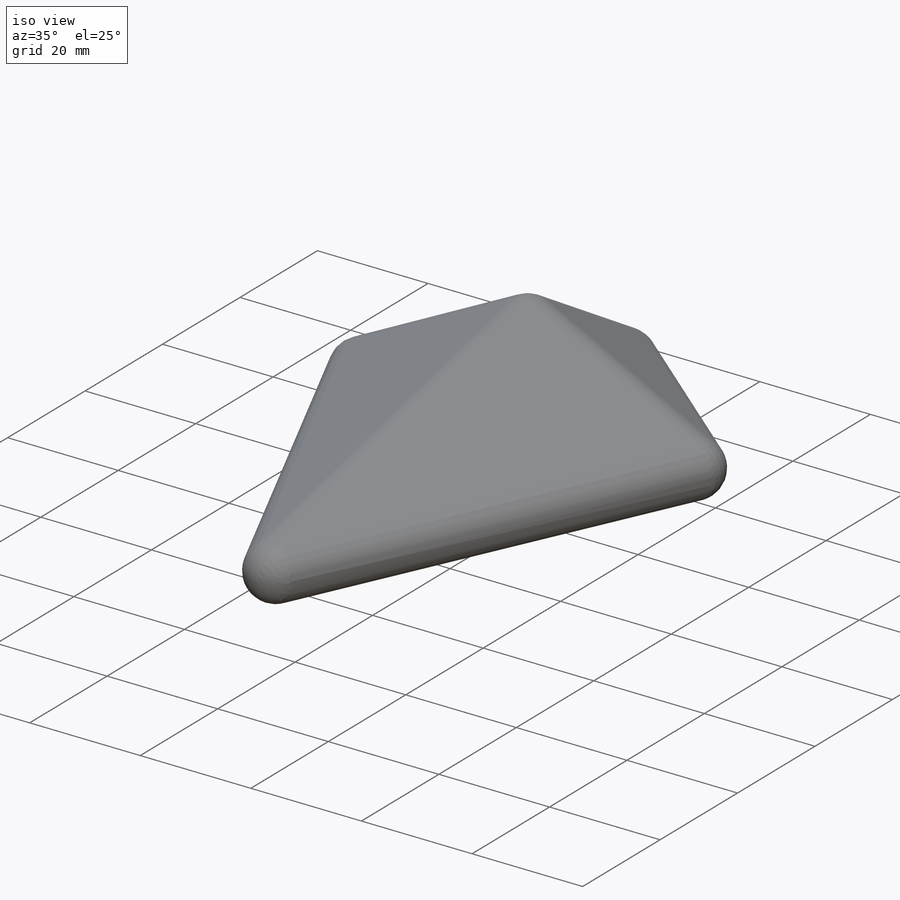
[diagram: iso view]
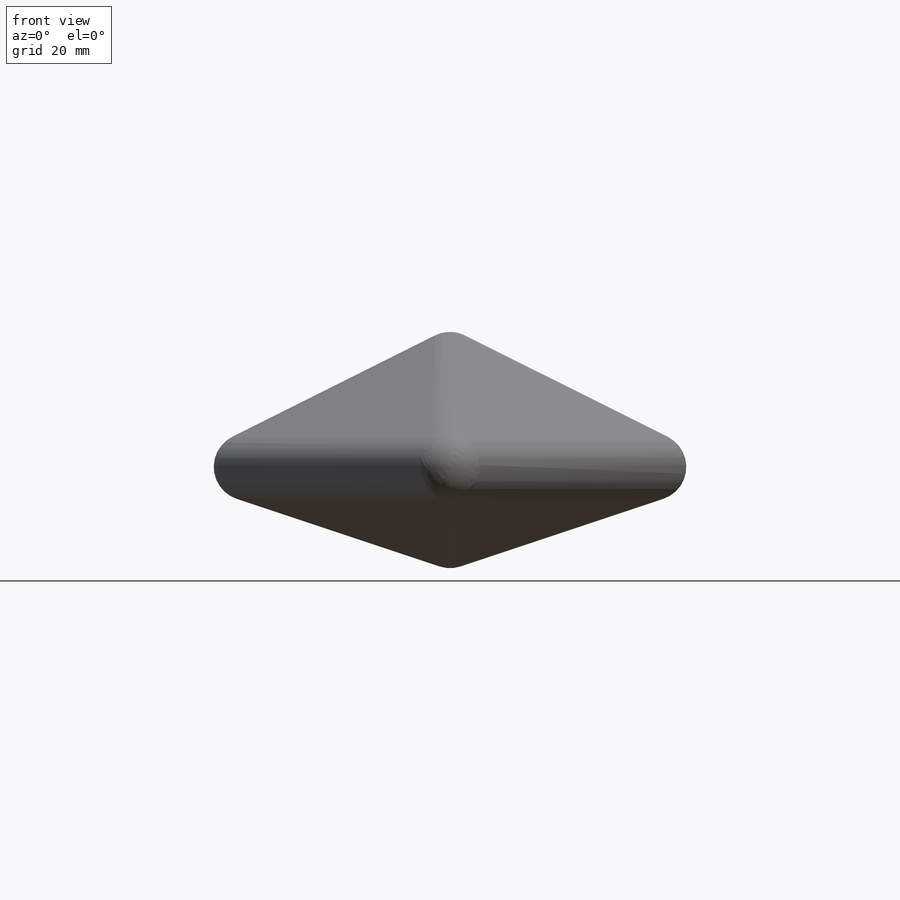
[diagram: front view]
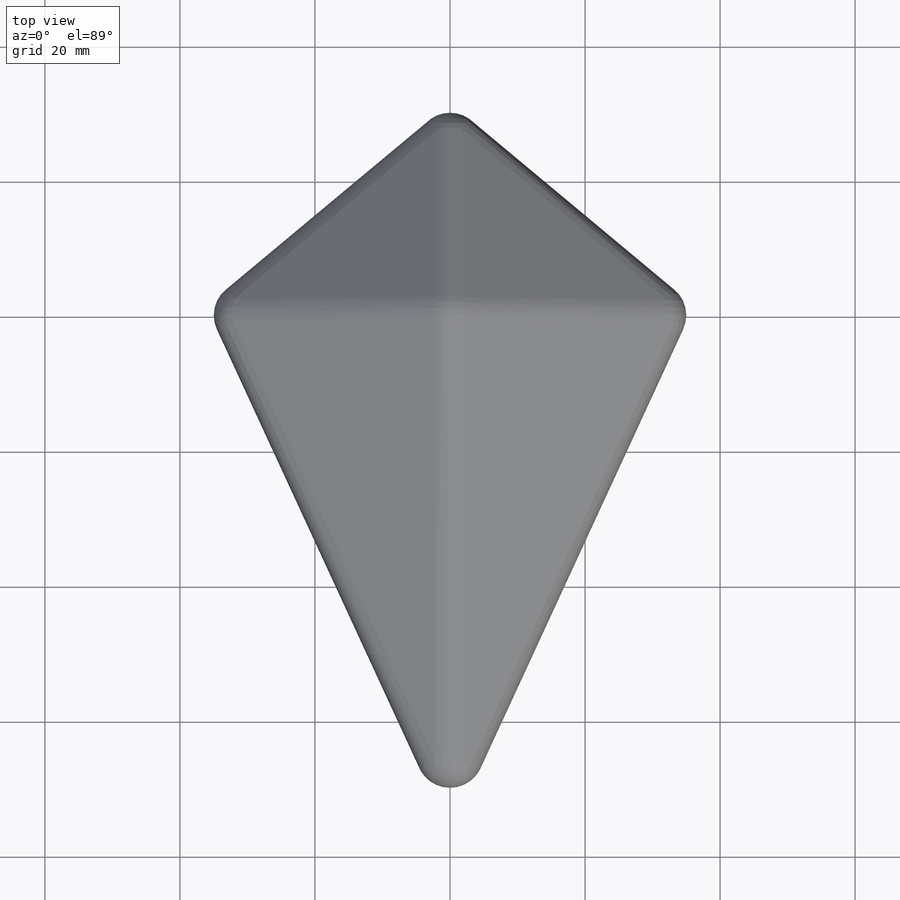
[diagram: top view]
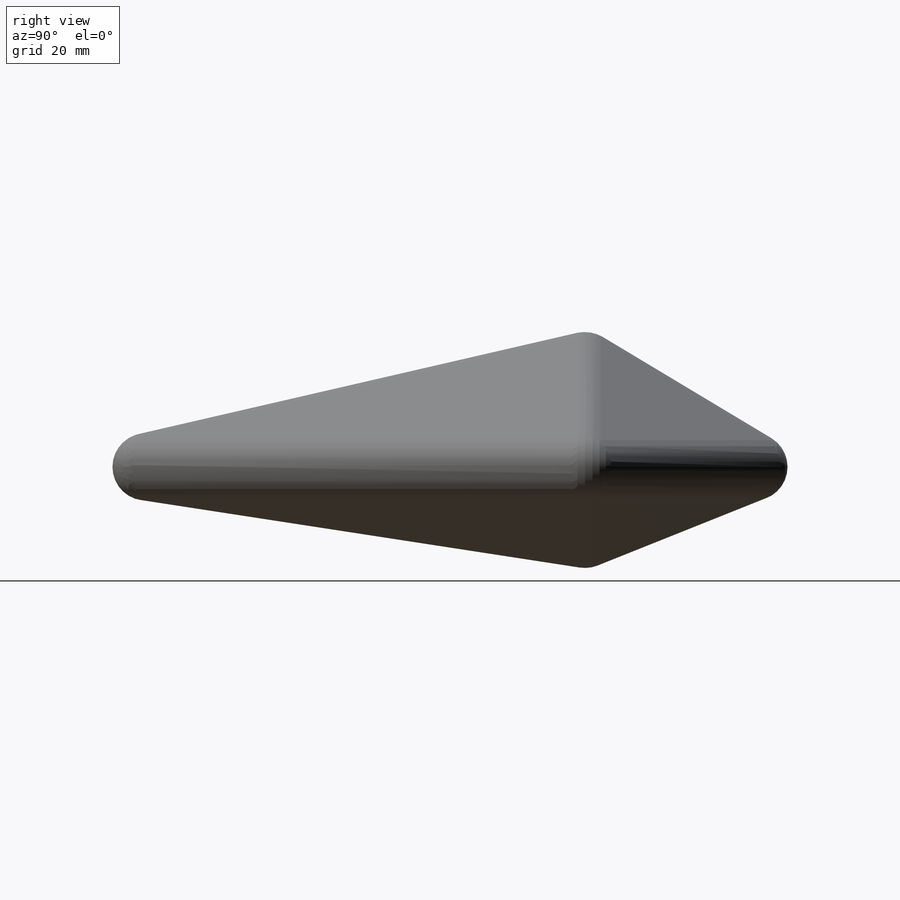
[diagram: right view]
SOLIDWORKS PART (.sldprt)
format: sldprt  version: not decoded by parser v0  size: 279,552 bytes
history: native  units: mm
features: sketch x6, plane x5, cut_extrude x2, fillet x2, material x1, extrude x1, mirror x1 + 2 further entries (+8 scaffold rows collapsed)
feature tree (28):
  scaffold x8  (default folders/planes/origin — collapsed)
  material  "Allgemein"
  plane  "Vorderansicht"
  plane  "Draufsicht"
  plane  "Seitenansicht"
  "Y-Achse"
  "Z-Achse"
  sketch  "Layout_DS"  dims[c1.D1=~13.526074mm c1.D4=5.0mm c2.D1=70.0mm c2.D2=30.0mm c2.D3=100.0mm]
  plane  "Ebene1"
  sketch  "Layout_Ebene1"  dims[c1.D1=5.0mm c1.D4=5.0mm c2.D1=~69.662786mm c2.D2=15.0mm c2.D3=20.0mm c3.D1=~12.316427mm]
  plane  "Ebene2"
  sketch  "Layout_Ebene2"  dims[D1=~17.50186mm]
  sketch  "Skizze9"  dims[c1.D1=~122.20559mm c1.D2=~103.627614mm c2.D1=~21.679346mm]
  extrude  "Aufsatz-Linear austragen5"  Depth=40mm
  sketch  "Skizze10"
  cut_extrude  "Schnitt-Linear austragen1"  [1 undecoded]
  sketch  "Skizze11"
  cut_extrude  "Schnitt-Linear austragen2"  [1 undecoded]
  mirror  "Spiegeln2"
  fillet  "Verrundung6"  Radius=5mm
  fillet  "Verrundung8"  Radius=5mm
decode coverage: 7 of 12 modeling features carry decoded parameters; 2 rows unclassified (native names shown)
note: ~ marks probable driven/reference dimensions
note: 2 parameter values undecoded
note: suppression state not decoded; provenance and decode notes live in map.json
